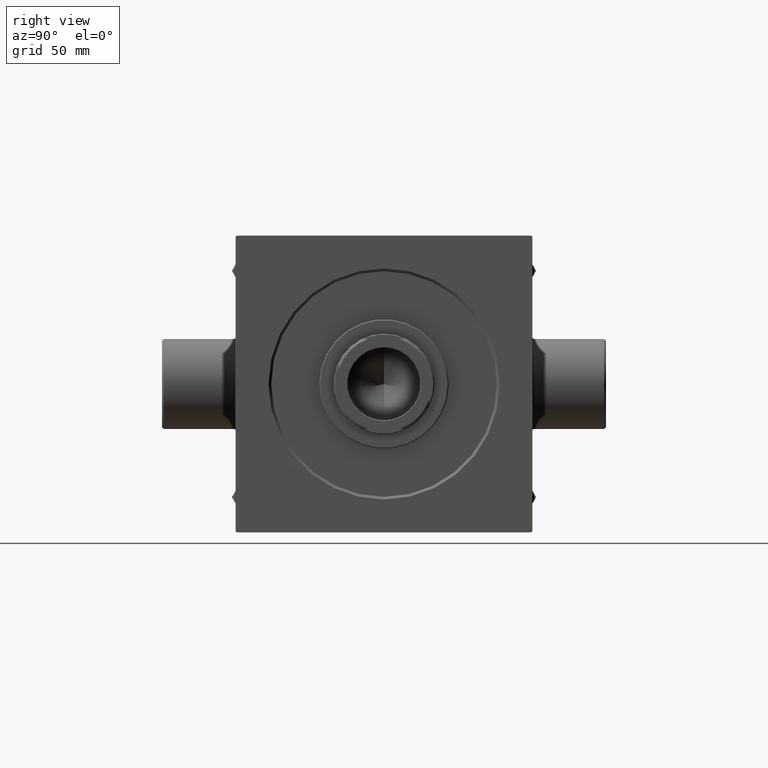
[diagram: clean part render]
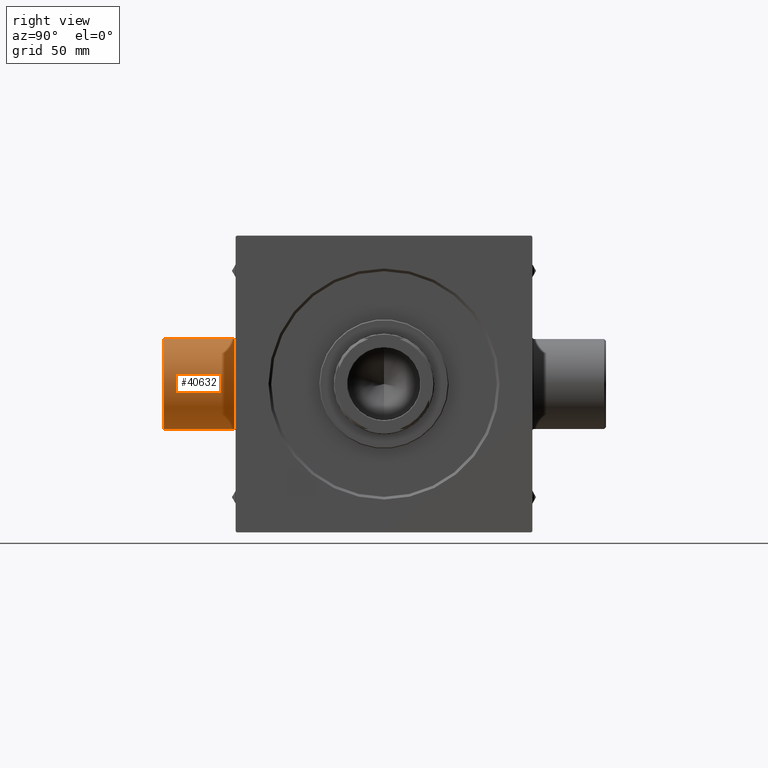
[diagram: same view with one face highlighted and labeled with its STEP entity id]
A machine part, right view. The second image highlights one B-rep face of the part: STEP entity #40632.
In plain terms, the highlighted cylindrical surface (partial cylindrical patch) has radius 25 mm, axis along (0, 1, 0).
Its self-contained STEP definition (entity closure, byte-faithful):
#2768 = DIRECTION ( 'NONE',  ( -0.000000000000000000, 1.000000000000000000, 8.673617379884036705E-17 ) ) ;
#2978 = DIRECTION ( 'NONE',  ( -0.000000000000000000, -1.000000000000000000, 1.682156097916903588E-16 ) ) ;
#3988 = DIRECTION ( 'NONE',  ( 0.000000000000000000, 0.000000000000000000, -1.000000000000000000 ) ) ;
#4661 = EDGE_CURVE ( 'NONE', #8732, #6250, #13638, .T. ) ;
#5937 = ORIENTED_EDGE ( 'NONE', *, *, #4661, .F. ) ;
#6214 = EDGE_CURVE ( 'NONE', #13066, #32612, #41629, .T. ) ;
#6250 = VERTEX_POINT ( 'NONE', #45893 ) ;
#7451 = CYLINDRICAL_SURFACE ( 'NONE', #8493, 25.00000000000000000 ) ;
#8148 = EDGE_CURVE ( 'NONE', #32612, #6250, #14912, .T. ) ;
#8493 = AXIS2_PLACEMENT_3D ( 'NONE', #36805, #36352, #18317 ) ;
#8732 = VERTEX_POINT ( 'NONE', #11999 ) ;
#11025 = CARTESIAN_POINT ( 'NONE',  ( 27.50000000000000355, -122.5000000000000995, -24.99999999999999289 ) ) ;
#11999 = CARTESIAN_POINT ( 'NONE',  ( 27.50000000000000000, -122.5000000000000995, 25.00000000000001066 ) ) ;
#12598 = VECTOR ( 'NONE', #38081, 1000.000000000000000 ) ;
#13066 = VERTEX_POINT ( 'NONE', #11025 ) ;
#13638 = LINE ( 'NONE', #34499, #30835 ) ;
#14912 = CIRCLE ( 'NONE', #20969, 25.00000000000000000 ) ;
#16485 = CARTESIAN_POINT ( 'NONE',  ( 27.50000000000000355, -83.49999999999998579, -24.99999999999998579 ) ) ;
#18317 = DIRECTION ( 'NONE',  ( 0.000000000000000000, 0.000000000000000000, 1.000000000000000000 ) ) ;
#19867 = AXIS2_PLACEMENT_3D ( 'NONE', #24807, #39292, #3988 ) ;
#20060 = ORIENTED_EDGE ( 'NONE', *, *, #8148, .T. ) ;
#20395 = ORIENTED_EDGE ( 'NONE', *, *, #24862, .T. ) ;
#20482 = CARTESIAN_POINT ( 'NONE',  ( 27.50000000000000000, -83.49999999999998579, 1.379105163401561325E-14 ) ) ;
#20969 = AXIS2_PLACEMENT_3D ( 'NONE', #20482, #2978, #34476 ) ;
#24807 = CARTESIAN_POINT ( 'NONE',  ( 27.50000000000000000, -122.5000000000000995, 1.040834085586082994E-14 ) ) ;
#24862 = EDGE_CURVE ( 'NONE', #8732, #13066, #37279, .T. ) ;
#26724 = CARTESIAN_POINT ( 'NONE',  ( 27.50000000000000355, -83.49999999999998579, -24.99999999999998579 ) ) ;
#28262 = ORIENTED_EDGE ( 'NONE', *, *, #6214, .T. ) ;
#30835 = VECTOR ( 'NONE', #2768, 1000.000000000000000 ) ;
#32612 = VERTEX_POINT ( 'NONE', #26724 ) ;
#34476 = DIRECTION ( 'NONE',  ( 0.000000000000000000, 0.000000000000000000, 1.000000000000000000 ) ) ;
#34499 = CARTESIAN_POINT ( 'NONE',  ( 27.50000000000000000, -83.49999999999998579, 25.00000000000001421 ) ) ;
#36352 = DIRECTION ( 'NONE',  ( -0.000000000000000000, 1.000000000000000000, 8.673617379884036705E-17 ) ) ;
#36805 = CARTESIAN_POINT ( 'NONE',  ( 27.50000000000000000, -83.49999999999998579, 1.379105163401561325E-14 ) ) ;
#37279 = CIRCLE ( 'NONE', #19867, 25.00000000000000000 ) ;
#38081 = DIRECTION ( 'NONE',  ( -0.000000000000000000, 1.000000000000000000, 8.673617379884036705E-17 ) ) ;
#39292 = DIRECTION ( 'NONE',  ( 0.000000000000000000, 1.000000000000000000, 8.673617379884069985E-17 ) ) ;
#39905 = FACE_OUTER_BOUND ( 'NONE', #45259, .T. ) ;
#40632 = ADVANCED_FACE ( 'NONE', ( #39905 ), #7451, .T. ) ;
#41629 = LINE ( 'NONE', #16485, #12598 ) ;
#45259 = EDGE_LOOP ( 'NONE', ( #20395, #28262, #20060, #5937 ) ) ;
#45893 = CARTESIAN_POINT ( 'NONE',  ( 27.50000000000000000, -83.49999999999998579, 25.00000000000001421 ) ) ;